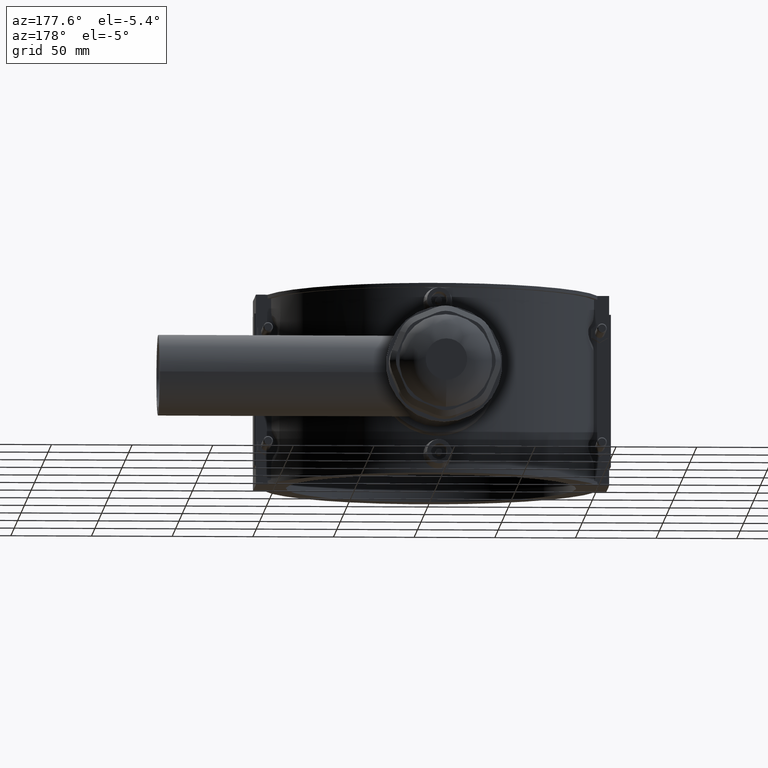
[diagram: clean part render]
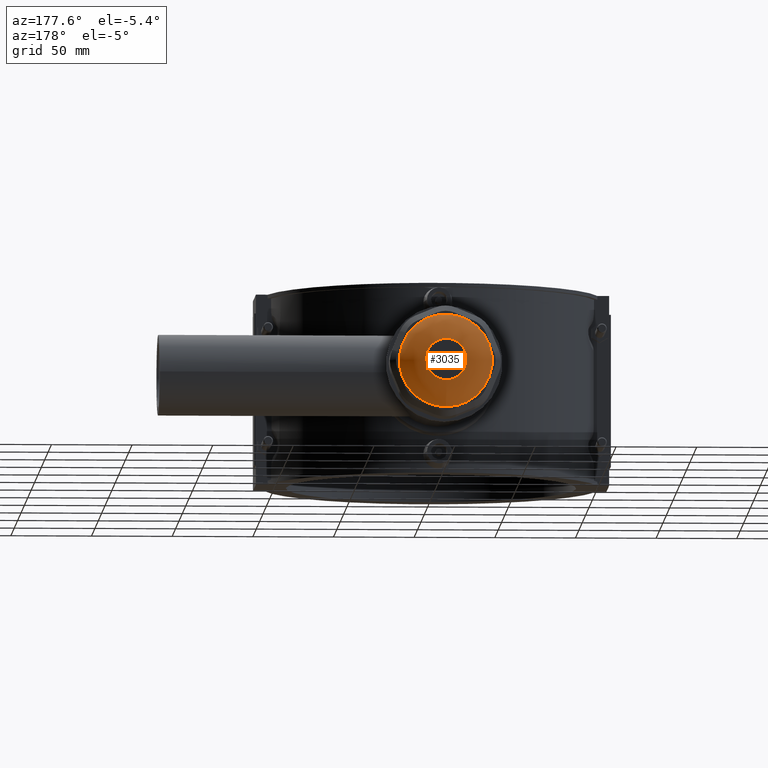
[diagram: same view with one face highlighted and labeled with its STEP entity id]
A machine part, auxiliary view. The second image highlights one B-rep face of the part: STEP entity #3035.
In plain terms, the highlighted face is a freeform B-spline surface patch.
Its self-contained STEP definition (entity closure, byte-faithful):
#24=(
BOUNDED_CURVE()
B_SPLINE_CURVE(2,(#4727,#4728,#4729),.UNSPECIFIED.,.F.,.F.)
B_SPLINE_CURVE_WITH_KNOTS((3,3),(-1.5707963267949,-0.481752961649267),
 .UNSPECIFIED.)
CURVE()
GEOMETRIC_REPRESENTATION_ITEM()
RATIONAL_B_SPLINE_CURVE((1.,0.85537516135709,1.))
REPRESENTATION_ITEM('')
);
#25=(
BOUNDED_SURFACE()
B_SPLINE_SURFACE(2,2,((#4698,#4699,#4700,#4701,#4702,#4703,#4704,#4705,
#4706),(#4707,#4708,#4709,#4710,#4711,#4712,#4713,#4714,#4715),(#4716,#4717,
#4718,#4719,#4720,#4721,#4722,#4723,#4724)),.UNSPECIFIED.,.F.,.T.,.F.)
B_SPLINE_SURFACE_WITH_KNOTS((3,3),(3,2,2,2,3),(0.481752961649267,1.5707963267949),
(-3.14159265358979,-1.5707963267949,0.,1.5707963267949,3.14159265358979),
 .UNSPECIFIED.)
GEOMETRIC_REPRESENTATION_ITEM()
RATIONAL_B_SPLINE_SURFACE(((1.,0.707106781186548,1.,0.707106781186548,1.,
0.707106781186548,1.,0.707106781186548,1.),(0.85537516135709,0.604841577054136,
0.85537516135709,0.604841577054136,0.85537516135709,0.604841577054136,0.85537516135709,
0.604841577054136,0.85537516135709),(1.,0.707106781186548,1.,0.707106781186548,
1.,0.707106781186548,1.,0.707106781186548,1.)))
REPRESENTATION_ITEM('')
SURFACE()
);
#731=CIRCLE('',#3241,28.8);
#732=CIRCLE('',#3242,12.8486865744541);
#893=FACE_OUTER_BOUND('',#1080,.T.);
#1080=EDGE_LOOP('',(#2192,#2193,#2194,#2195));
#1384=VERTEX_POINT('',#4696);
#1385=VERTEX_POINT('',#4725);
#1702=EDGE_CURVE('',#1384,#1384,#731,.T.);
#1703=EDGE_CURVE('',#1385,#1385,#732,.T.);
#1704=EDGE_CURVE('',#1385,#1384,#24,.T.);
#2192=ORIENTED_EDGE('',*,*,#1703,.T.);
#2193=ORIENTED_EDGE('',*,*,#1704,.T.);
#2194=ORIENTED_EDGE('',*,*,#1702,.T.);
#2195=ORIENTED_EDGE('',*,*,#1704,.F.);
#3035=ADVANCED_FACE('',(#893),#25,.T.);
#3241=AXIS2_PLACEMENT_3D('',#4697,#3620,#3621);
#3242=AXIS2_PLACEMENT_3D('',#4726,#3622,#3623);
#3620=DIRECTION('center_axis',(0.,1.,3.06161699786838E-16));
#3621=DIRECTION('ref_axis',(1.,0.,0.));
#3622=DIRECTION('center_axis',(0.,-1.,-3.06161699786838E-16));
#3623=DIRECTION('ref_axis',(-6.12323399573677E-17,-3.45630043410822E-16,
1.));
#4696=CARTESIAN_POINT('',(5.29047417231657E-15,218.34,-28.8));
#4697=CARTESIAN_POINT('Origin',(0.,218.34,3.92927925506428E-14));
#4698=CARTESIAN_POINT('Ctrl Pts',(1.76349139077219E-15,218.34,-28.8));
#4699=CARTESIAN_POINT('Ctrl Pts',(28.8,218.34,-28.8));
#4700=CARTESIAN_POINT('Ctrl Pts',(28.8,218.34,4.1056283941415E-14));
#4701=CARTESIAN_POINT('Ctrl Pts',(28.8,218.34,28.8));
#4702=CARTESIAN_POINT('Ctrl Pts',(-1.76349139077219E-15,218.34,28.8));
#4703=CARTESIAN_POINT('Ctrl Pts',(-28.8,218.34,28.8));
#4704=CARTESIAN_POINT('Ctrl Pts',(-28.8,218.34,3.75293011598707E-14));
#4705=CARTESIAN_POINT('Ctrl Pts',(-28.8,218.34,-28.8));
#4706=CARTESIAN_POINT('Ctrl Pts',(1.76349139077219E-15,218.34,-28.8));
#4707=CARTESIAN_POINT('Ctrl Pts',(1.45422866126172E-15,228.,-23.7493563413419));
#4708=CARTESIAN_POINT('Ctrl Pts',(23.7493563413419,228.,-23.7493563413419));
#4709=CARTESIAN_POINT('Ctrl Pts',(23.7493563413419,228.,4.37045432318454E-14));
#4710=CARTESIAN_POINT('Ctrl Pts',(23.7493563413419,228.,23.749356341342));
#4711=CARTESIAN_POINT('Ctrl Pts',(-1.45422866126172E-15,228.,23.749356341342));
#4712=CARTESIAN_POINT('Ctrl Pts',(-23.7493563413419,228.,23.749356341342));
#4713=CARTESIAN_POINT('Ctrl Pts',(-23.7493563413419,228.,4.0796085909322E-14));
#4714=CARTESIAN_POINT('Ctrl Pts',(-23.7493563413419,228.,-23.7493563413419));
#4715=CARTESIAN_POINT('Ctrl Pts',(1.45422866126172E-15,228.,-23.7493563413419));
#4716=CARTESIAN_POINT('Ctrl Pts',(7.86755144332642E-16,228.,-12.8486865744541));
#4717=CARTESIAN_POINT('Ctrl Pts',(12.8486865744541,228.,-12.8486865744541));
#4718=CARTESIAN_POINT('Ctrl Pts',(12.8486865744541,228.,4.30370697149163E-14));
#4719=CARTESIAN_POINT('Ctrl Pts',(12.8486865744541,228.,12.8486865744542));
#4720=CARTESIAN_POINT('Ctrl Pts',(-7.86755144332642E-16,228.,12.8486865744542));
#4721=CARTESIAN_POINT('Ctrl Pts',(-12.8486865744541,228.,12.8486865744542));
#4722=CARTESIAN_POINT('Ctrl Pts',(-12.8486865744541,228.,4.1463559426251E-14));
#4723=CARTESIAN_POINT('Ctrl Pts',(-12.8486865744541,228.,-12.8486865744541));
#4724=CARTESIAN_POINT('Ctrl Pts',(7.86755144332642E-16,228.,-12.8486865744541));
#4725=CARTESIAN_POINT('',(2.36026543299793E-15,228.,-12.8486865744541));
#4726=CARTESIAN_POINT('Origin',(0.,228.,4.22503145705837E-14));
#4727=CARTESIAN_POINT('Ctrl Pts',(7.86755144332642E-16,228.,-12.8486865744541));
#4728=CARTESIAN_POINT('Ctrl Pts',(1.45422866126172E-15,228.,-23.7493563413419));
#4729=CARTESIAN_POINT('Ctrl Pts',(1.76349139077219E-15,218.34,-28.8));